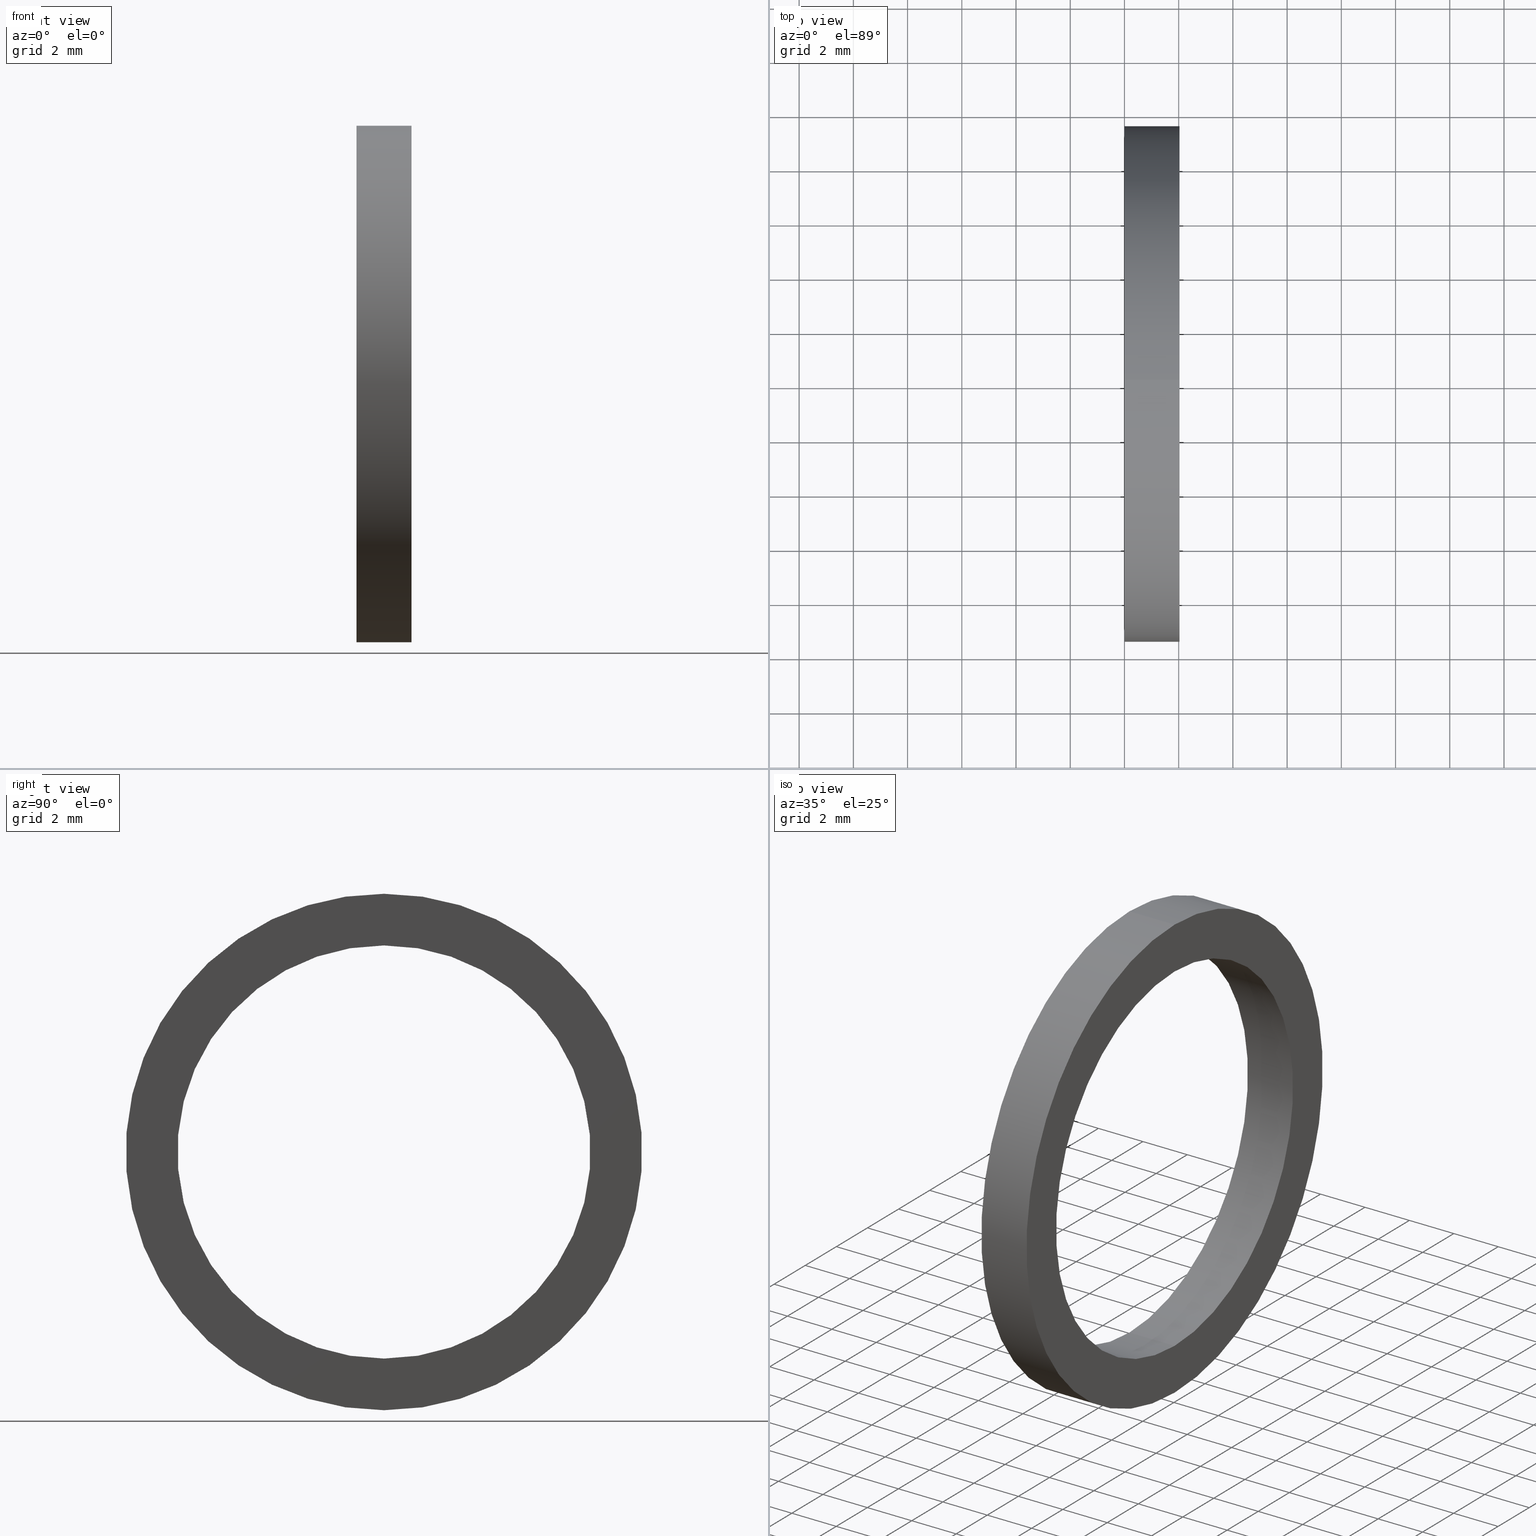
[diagram: canonical four-view strip — front | top / right | iso, engineering-drawing reading convention]
A machine part, canonical four-view strip (front | top / right | iso — engineering-drawing reading convention). The complete STEP part file that produces these views, byte-faithful:
ISO-10303-21;
HEADER;
FILE_DESCRIPTION (( 'STEP AP203' ),
    '1' );
FILE_NAME ('SR-09-VT.STEP',
    '2008-06-24T11:58:33',
    ( 'BSI05' ),
    ( 'BAYSTATE' ),
    'SwSTEP 2.0',
    'SolidWorks 2007',
    '' );
FILE_SCHEMA (( 'CONFIG_CONTROL_DESIGN' ));
ENDSEC;

DATA;
#1 = DIRECTION ( 'NONE',  ( 0.0000000000000000000, 0.0000000000000000000, 1.000000000000000000 ) ) ;
#2 = DIRECTION ( 'NONE',  ( 0.0000000000000000000, 0.0000000000000000000, -1.000000000000000000 ) ) ;
#3 =( NAMED_UNIT ( * ) PLANE_ANGLE_UNIT ( ) SI_UNIT ( $, .RADIAN. ) );
#4 = MANIFOLD_SOLID_BREP ( 'NONE', #10 ) ;
#5 = ADVANCED_FACE ( 'NONE', ( #32 ), #30, .F. ) ;
#6 = EDGE_LOOP ( 'NONE', ( #7, #45, #49, #38 ) ) ;
#7 = ORIENTED_EDGE ( 'NONE', *, *, #8, .F. ) ;
#8 = EDGE_CURVE ( 'NONE', #44, #43, #75, .T. ) ;
#9 = ORIENTED_EDGE ( 'NONE', *, *, #55, .T. ) ;
#10 = CLOSED_SHELL ( 'NONE', ( #5, #39, #33, #54, #18, #13 ) ) ;
#11 = ORIENTED_EDGE ( 'NONE', *, *, #8, .T. ) ;
#12 = ORIENTED_EDGE ( 'NONE', *, *, #52, .F. ) ;
#13 = ADVANCED_FACE ( 'NONE', ( #77 ), #80, .F. ) ;
#14 = EDGE_LOOP ( 'NONE', ( #15, #16, #17, #9 ) ) ;
#15 = ORIENTED_EDGE ( 'NONE', *, *, #46, .F. ) ;
#16 = ORIENTED_EDGE ( 'NONE', *, *, #23, .F. ) ;
#17 = ORIENTED_EDGE ( 'NONE', *, *, #41, .T. ) ;
#18 = ADVANCED_FACE ( 'NONE', ( #83, #82 ), #87, .T. ) ;
#19 = EDGE_LOOP ( 'NONE', ( #20, #11 ) ) ;
#20 = ORIENTED_EDGE ( 'NONE', *, *, #23, .T. ) ;
#21 = ORIENTED_EDGE ( 'NONE', *, *, #37, .F. ) ;
#22 = EDGE_LOOP ( 'NONE', ( #21, #12 ) ) ;
#23 = EDGE_CURVE ( 'NONE', #43, #44, #113, .T. ) ;
#24 = ORIENTED_EDGE ( 'NONE', *, *, #47, .F. ) ;
#25 = EDGE_LOOP ( 'NONE', ( #26, #27, #53, #56 ) ) ;
#26 = ORIENTED_EDGE ( 'NONE', *, *, #60, .F. ) ;
#27 = ORIENTED_EDGE ( 'NONE', *, *, #52, .T. ) ;
#28 = DIRECTION ( 'NONE',  ( -1.000000000000000000, 0.0000000000000000000, 0.0000000000000000000 ) ) ;
#29 = AXIS2_PLACEMENT_3D ( 'NONE', #31, #28, #1 ) ;
#30 = CYLINDRICAL_SURFACE ( 'NONE', #29, 0.2999999999999999900 ) ;
#31 = CARTESIAN_POINT ( 'NONE',  ( -1.721125226614714300, 0.0000000000000000000, 0.0000000000000000000 ) ) ;
#32 = FACE_OUTER_BOUND ( 'NONE', #6, .T. ) ;
#33 = ADVANCED_FACE ( 'NONE', ( #126, #89 ), #90, .T. ) ;
#34 = EDGE_LOOP ( 'NONE', ( #63, #64 ) ) ;
#35 = VERTEX_POINT ( 'NONE', #97 ) ;
#36 = ORIENTED_EDGE ( 'NONE', *, *, #37, .T. ) ;
#37 = EDGE_CURVE ( 'NONE', #58, #59, #95, .T. ) ;
#38 = ORIENTED_EDGE ( 'NONE', *, *, #41, .F. ) ;
#39 = ADVANCED_FACE ( 'NONE', ( #96 ), #101, .T. ) ;
#40 = EDGE_LOOP ( 'NONE', ( #36, #67, #61, #69 ) ) ;
#41 = EDGE_CURVE ( 'NONE', #43, #42, #128, .T. ) ;
#42 = VERTEX_POINT ( 'NONE', #129 ) ;
#43 = VERTEX_POINT ( 'NONE', #123 ) ;
#44 = VERTEX_POINT ( 'NONE', #122 ) ;
#45 = ORIENTED_EDGE ( 'NONE', *, *, #46, .T. ) ;
#46 = EDGE_CURVE ( 'NONE', #44, #48, #121, .T. ) ;
#47 = EDGE_CURVE ( 'NONE', #48, #42, #111, .T. ) ;
#48 = VERTEX_POINT ( 'NONE', #158 ) ;
#49 = ORIENTED_EDGE ( 'NONE', *, *, #47, .T. ) ;
#50 = UNCERTAINTY_MEASURE_WITH_UNIT (LENGTH_MEASURE( 1.000000000000000100E-005 ), #165, 'distance_accuracy_value', 'NONE');
#51 =( NAMED_UNIT ( * ) SI_UNIT ( $, .STERADIAN. ) SOLID_ANGLE_UNIT ( ) );
#52 = EDGE_CURVE ( 'NONE', #59, #58, #136, .T. ) ;
#53 = ORIENTED_EDGE ( 'NONE', *, *, #70, .T. ) ;
#54 = ADVANCED_FACE ( 'NONE', ( #130 ), #131, .T. ) ;
#55 = EDGE_CURVE ( 'NONE', #42, #48, #137, .T. ) ;
#56 = ORIENTED_EDGE ( 'NONE', *, *, #65, .F. ) ;
#57 = ORIENTED_EDGE ( 'NONE', *, *, #55, .F. ) ;
#58 = VERTEX_POINT ( 'NONE', #138 ) ;
#59 = VERTEX_POINT ( 'NONE', #160 ) ;
#60 = EDGE_CURVE ( 'NONE', #59, #35, #159, .T. ) ;
#61 = ORIENTED_EDGE ( 'NONE', *, *, #62, .F. ) ;
#62 = EDGE_CURVE ( 'NONE', #68, #35, #154, .T. ) ;
#63 = ORIENTED_EDGE ( 'NONE', *, *, #62, .T. ) ;
#64 = ORIENTED_EDGE ( 'NONE', *, *, #65, .T. ) ;
#65 = EDGE_CURVE ( 'NONE', #35, #68, #146, .T. ) ;
#66 = EDGE_LOOP ( 'NONE', ( #57, #24 ) ) ;
#67 = ORIENTED_EDGE ( 'NONE', *, *, #60, .T. ) ;
#68 = VERTEX_POINT ( 'NONE', #171 ) ;
#69 = ORIENTED_EDGE ( 'NONE', *, *, #70, .F. ) ;
#70 = EDGE_CURVE ( 'NONE', #58, #68, #173, .T. ) ;
#71 = DIRECTION ( 'NONE',  ( 0.0000000000000000000, 0.0000000000000000000, 1.000000000000000000 ) ) ;
#72 = DIRECTION ( 'NONE',  ( -1.000000000000000000, 0.0000000000000000000, 0.0000000000000000000 ) ) ;
#73 = CARTESIAN_POINT ( 'NONE',  ( 0.07999999999999996000, 0.0000000000000000000, 0.0000000000000000000 ) ) ;
#74 = AXIS2_PLACEMENT_3D ( 'NONE', #73, #72, #71 ) ;
#75 = CIRCLE ( 'NONE', #74, 0.2999999999999999900 ) ;
#76 = DIRECTION ( 'NONE',  ( 0.0000000000000000000, 0.0000000000000000000, 1.000000000000000000 ) ) ;
#77 = FACE_OUTER_BOUND ( 'NONE', #14, .T. ) ;
#78 = DIRECTION ( 'NONE',  ( -1.000000000000000000, 0.0000000000000000000, 0.0000000000000000000 ) ) ;
#79 = AXIS2_PLACEMENT_3D ( 'NONE', #81, #78, #76 ) ;
#80 = CYLINDRICAL_SURFACE ( 'NONE', #79, 0.2999999999999999900 ) ;
#81 = CARTESIAN_POINT ( 'NONE',  ( -1.721125226614714300, 0.0000000000000000000, 0.0000000000000000000 ) ) ;
#82 = FACE_OUTER_BOUND ( 'NONE', #22, .T. ) ;
#83 = FACE_BOUND ( 'NONE', #19, .T. ) ;
#84 = DIRECTION ( 'NONE',  ( 1.000000000000000000, 0.0000000000000000000, 0.0000000000000000000 ) ) ;
#85 = CARTESIAN_POINT ( 'NONE',  ( 0.08000000000000000200, -0.2999999999999999900, 0.0000000000000000000 ) ) ;
#86 = AXIS2_PLACEMENT_3D ( 'NONE', #85, #84, #2 ) ;
#87 = PLANE ( 'NONE',  #86 ) ;
#88 = CARTESIAN_POINT ( 'NONE',  ( 0.07999999999999996000, 0.0000000000000000000, 0.0000000000000000000 ) ) ;
#89 = FACE_BOUND ( 'NONE', #66, .T. ) ;
#90 = PLANE ( 'NONE',  #118 ) ;
#91 = DIRECTION ( 'NONE',  ( 0.0000000000000000000, 0.0000000000000000000, 1.000000000000000000 ) ) ;
#92 = DIRECTION ( 'NONE',  ( -1.000000000000000000, 0.0000000000000000000, 0.0000000000000000000 ) ) ;
#93 = AXIS2_PLACEMENT_3D ( 'NONE', #114, #92, #91 ) ;
#94 = AXIS2_PLACEMENT_3D ( 'NONE', #104, #103, #102 ) ;
#95 = CIRCLE ( 'NONE', #94, 0.3750000000000000600 ) ;
#96 = FACE_OUTER_BOUND ( 'NONE', #40, .T. ) ;
#97 = CARTESIAN_POINT ( 'NONE',  ( 0.0000000000000000000, 4.592425496802575500E-017, -0.3750000000000000600 ) ) ;
#98 = DIRECTION ( 'NONE',  ( 0.0000000000000000000, 0.0000000000000000000, 1.000000000000000000 ) ) ;
#99 = DIRECTION ( 'NONE',  ( -1.000000000000000000, 0.0000000000000000000, 0.0000000000000000000 ) ) ;
#100 = CARTESIAN_POINT ( 'NONE',  ( 1.132760877285699200E-017, -0.2999999999999999900, 0.0000000000000000000 ) ) ;
#101 = CYLINDRICAL_SURFACE ( 'NONE', #93, 0.3750000000000000600 ) ;
#102 = DIRECTION ( 'NONE',  ( 0.0000000000000000000, 0.0000000000000000000, 1.000000000000000000 ) ) ;
#103 = DIRECTION ( 'NONE',  ( -1.000000000000000000, 0.0000000000000000000, 0.0000000000000000000 ) ) ;
#104 = CARTESIAN_POINT ( 'NONE',  ( 0.07999999999999996000, 0.0000000000000000000, 0.0000000000000000000 ) ) ;
#105 = DIRECTION ( 'NONE',  ( -1.000000000000000000, 0.0000000000000000000, 0.0000000000000000000 ) ) ;
#106 = DIRECTION ( 'NONE',  ( 0.0000000000000000000, 0.0000000000000000000, 1.000000000000000000 ) ) ;
#107 = DATE_TIME_ROLE ( 'creation_date' ) ;
#108 = DIRECTION ( 'NONE',  ( 0.0000000000000000000, 0.0000000000000000000, 1.000000000000000000 ) ) ;
#109 = DIRECTION ( 'NONE',  ( -1.000000000000000000, 0.0000000000000000000, 0.0000000000000000000 ) ) ;
#110 = AXIS2_PLACEMENT_3D ( 'NONE', #115, #109, #108 ) ;
#111 = CIRCLE ( 'NONE', #110, 0.2999999999999999900 ) ;
#112 =( GEOMETRIC_REPRESENTATION_CONTEXT ( 3 ) GLOBAL_UNCERTAINTY_ASSIGNED_CONTEXT ( ( #50 ) ) GLOBAL_UNIT_ASSIGNED_CONTEXT ( ( #165, #3, #51 ) ) REPRESENTATION_CONTEXT ( 'NONE', 'WORKASPACE' ) );
#113 = CIRCLE ( 'NONE', #117, 0.2999999999999999900 ) ;
#114 = CARTESIAN_POINT ( 'NONE',  ( -1.721125226614714300, 0.0000000000000000000, 0.0000000000000000000 ) ) ;
#115 = CARTESIAN_POINT ( 'NONE',  ( 0.0000000000000000000, 0.0000000000000000000, 0.0000000000000000000 ) ) ;
#116 = VECTOR ( 'NONE', #119, 39.37007874015748100 ) ;
#117 = AXIS2_PLACEMENT_3D ( 'NONE', #88, #105, #106 ) ;
#118 = AXIS2_PLACEMENT_3D ( 'NONE', #100, #99, #98 ) ;
#119 = DIRECTION ( 'NONE',  ( -1.000000000000000000, 0.0000000000000000000, 0.0000000000000000000 ) ) ;
#120 = CARTESIAN_POINT ( 'NONE',  ( -1.721125226614714300, 3.673940397442058900E-017, -0.2999999999999999900 ) ) ;
#121 = LINE ( 'NONE', #120, #116 ) ;
#122 = CARTESIAN_POINT ( 'NONE',  ( 0.07999999999999996000, 3.673940397442058900E-017, -0.2999999999999999900 ) ) ;
#123 = CARTESIAN_POINT ( 'NONE',  ( 0.07999999999999996000, 0.0000000000000000000, 0.2999999999999999900 ) ) ;
#124 = DIRECTION ( 'NONE',  ( -1.000000000000000000, 0.0000000000000000000, 0.0000000000000000000 ) ) ;
#125 = VECTOR ( 'NONE', #124, 39.37007874015748100 ) ;
#126 = FACE_OUTER_BOUND ( 'NONE', #34, .T. ) ;
#127 = CARTESIAN_POINT ( 'NONE',  ( -1.721125226614714300, 0.0000000000000000000, 0.2999999999999999900 ) ) ;
#128 = LINE ( 'NONE', #127, #125 ) ;
#129 = CARTESIAN_POINT ( 'NONE',  ( 0.0000000000000000000, 0.0000000000000000000, 0.2999999999999999900 ) ) ;
#130 = FACE_OUTER_BOUND ( 'NONE', #25, .T. ) ;
#131 = CYLINDRICAL_SURFACE ( 'NONE', #140, 0.3750000000000000600 ) ;
#132 = DIRECTION ( 'NONE',  ( -1.000000000000000000, 0.0000000000000000000, 0.0000000000000000000 ) ) ;
#133 = CARTESIAN_POINT ( 'NONE',  ( -1.721125226614714300, 0.0000000000000000000, 0.0000000000000000000 ) ) ;
#134 = CARTESIAN_POINT ( 'NONE',  ( 0.07999999999999996000, 0.0000000000000000000, 0.0000000000000000000 ) ) ;
#135 = AXIS2_PLACEMENT_3D ( 'NONE', #134, #151, #150 ) ;
#136 = CIRCLE ( 'NONE', #135, 0.3750000000000000600 ) ;
#137 = CIRCLE ( 'NONE', #164, 0.2999999999999999900 ) ;
#138 = CARTESIAN_POINT ( 'NONE',  ( 0.07999999999999996000, 0.0000000000000000000, 0.3750000000000000600 ) ) ;
#139 = DIRECTION ( 'NONE',  ( 0.0000000000000000000, 0.0000000000000000000, 1.000000000000000000 ) ) ;
#140 = AXIS2_PLACEMENT_3D ( 'NONE', #133, #132, #139 ) ;
#141 = CC_DESIGN_DATE_AND_TIME_ASSIGNMENT ( #182, #107, ( #200 ) ) ;
#142 = DIRECTION ( 'NONE',  ( 0.0000000000000000000, 0.0000000000000000000, 1.000000000000000000 ) ) ;
#143 = DIRECTION ( 'NONE',  ( -1.000000000000000000, 0.0000000000000000000, 0.0000000000000000000 ) ) ;
#144 = CARTESIAN_POINT ( 'NONE',  ( 0.0000000000000000000, 0.0000000000000000000, 0.0000000000000000000 ) ) ;
#145 = AXIS2_PLACEMENT_3D ( 'NONE', #144, #143, #142 ) ;
#146 = CIRCLE ( 'NONE', #145, 0.3750000000000000600 ) ;
#147 = ADVANCED_BREP_SHAPE_REPRESENTATION ( 'SR-09-VT', ( #4, #205 ), #112 ) ;
#148 = DIRECTION ( 'NONE',  ( 0.0000000000000000000, 0.0000000000000000000, 1.000000000000000000 ) ) ;
#149 = DIRECTION ( 'NONE',  ( -1.000000000000000000, 0.0000000000000000000, 0.0000000000000000000 ) ) ;
#150 = DIRECTION ( 'NONE',  ( 0.0000000000000000000, 0.0000000000000000000, 1.000000000000000000 ) ) ;
#151 = DIRECTION ( 'NONE',  ( -1.000000000000000000, 0.0000000000000000000, 0.0000000000000000000 ) ) ;
#152 = CARTESIAN_POINT ( 'NONE',  ( 0.0000000000000000000, 0.0000000000000000000, 0.0000000000000000000 ) ) ;
#153 = AXIS2_PLACEMENT_3D ( 'NONE', #152, #149, #148 ) ;
#154 = CIRCLE ( 'NONE', #153, 0.3750000000000000600 ) ;
#155 = DIRECTION ( 'NONE',  ( -1.000000000000000000, 0.0000000000000000000, 0.0000000000000000000 ) ) ;
#156 = VECTOR ( 'NONE', #155, 39.37007874015748100 ) ;
#157 = CARTESIAN_POINT ( 'NONE',  ( -1.721125226614714300, 4.592425496802575500E-017, -0.3750000000000000600 ) ) ;
#158 = CARTESIAN_POINT ( 'NONE',  ( 0.0000000000000000000, 3.673940397442058900E-017, -0.2999999999999999900 ) ) ;
#159 = LINE ( 'NONE', #157, #156 ) ;
#160 = CARTESIAN_POINT ( 'NONE',  ( 0.07999999999999996000, 4.592425496802575500E-017, -0.3750000000000000600 ) ) ;
#161 = DIRECTION ( 'NONE',  ( 0.0000000000000000000, 0.0000000000000000000, 1.000000000000000000 ) ) ;
#162 = DIRECTION ( 'NONE',  ( -1.000000000000000000, 0.0000000000000000000, 0.0000000000000000000 ) ) ;
#163 = CARTESIAN_POINT ( 'NONE',  ( 0.0000000000000000000, 0.0000000000000000000, 0.0000000000000000000 ) ) ;
#164 = AXIS2_PLACEMENT_3D ( 'NONE', #163, #162, #161 ) ;
#165 =( CONVERSION_BASED_UNIT ( 'INCH', #166 ) LENGTH_UNIT ( ) NAMED_UNIT ( #167 ) );
#166 = LENGTH_MEASURE_WITH_UNIT ( LENGTH_MEASURE( 0.02539999999999999900 ), #168 );
#167 = DIMENSIONAL_EXPONENTS ( 1.000000000000000000, 0.0000000000000000000, 0.0000000000000000000, 0.0000000000000000000, 0.0000000000000000000, 0.0000000000000000000, 0.0000000000000000000 ) ;
#168 =( LENGTH_UNIT ( ) NAMED_UNIT ( * ) SI_UNIT ( $, .METRE. ) );
#169 = DIRECTION ( 'NONE',  ( -1.000000000000000000, 0.0000000000000000000, 0.0000000000000000000 ) ) ;
#170 = VECTOR ( 'NONE', #169, 39.37007874015748100 ) ;
#171 = CARTESIAN_POINT ( 'NONE',  ( 0.0000000000000000000, 0.0000000000000000000, 0.3750000000000000600 ) ) ;
#172 = CARTESIAN_POINT ( 'NONE',  ( -1.721125226614714300, 0.0000000000000000000, 0.3750000000000000600 ) ) ;
#173 = LINE ( 'NONE', #172, #170 ) ;
#174 = PERSON_AND_ORGANIZATION ( #203, #210 ) ;
#175 = PRODUCT_DEFINITION_FORMATION_WITH_SPECIFIED_SOURCE ( 'ANY', '', #178, .NOT_KNOWN. ) ;
#176 = DIRECTION ( 'NONE',  ( 1.000000000000000000, 0.0000000000000000000, 0.0000000000000000000 ) ) ;
#177 = DIRECTION ( 'NONE',  ( 0.0000000000000000000, 0.0000000000000000000, 1.000000000000000000 ) ) ;
#178 = PRODUCT ( 'SR-09-VT', 'SR-09-VT', '', ( #179 ) ) ;
#179 = MECHANICAL_CONTEXT ( 'NONE', #181, 'mechanical' ) ;
#180 = APPLICATION_PROTOCOL_DEFINITION ( 'international standard', 'config_control_design', 1994, #181 ) ;
#181 = APPLICATION_CONTEXT ( 'configuration controlled 3d designs of mechanical parts and assemblies' ) ;
#182 = DATE_AND_TIME ( #183, #184 ) ;
#183 = CALENDAR_DATE ( 2008, 24, 6 ) ;
#184 = LOCAL_TIME ( 17, 28, 33.00000000000000000, #185 ) ;
#185 = COORDINATED_UNIVERSAL_TIME_OFFSET ( 5, 30, .AHEAD. ) ;
#186 = CC_DESIGN_PERSON_AND_ORGANIZATION_ASSIGNMENT ( #188, #187, ( #200 ) ) ;
#187 = PERSON_AND_ORGANIZATION_ROLE ( 'creator' ) ;
#188 = PERSON_AND_ORGANIZATION ( #203, #210 ) ;
#189 = CC_DESIGN_APPROVAL ( #197, ( #200 ) ) ;
#190 = APPROVAL_DATE_TIME ( #191, #197 ) ;
#191 = DATE_AND_TIME ( #192, #193 ) ;
#192 = CALENDAR_DATE ( 2008, 24, 6 ) ;
#193 = LOCAL_TIME ( 17, 28, 33.00000000000000000, #194 ) ;
#194 = COORDINATED_UNIVERSAL_TIME_OFFSET ( 5, 30, .AHEAD. ) ;
#195 = APPROVAL_PERSON_ORGANIZATION ( #199, #197, #196 ) ;
#196 = APPROVAL_ROLE ( '' ) ;
#197 = APPROVAL ( #198, 'UNSPECIFIED' ) ;
#198 = APPROVAL_STATUS ( 'not_yet_approved' ) ;
#199 = PERSON_AND_ORGANIZATION ( #203, #210 ) ;
#200 = PRODUCT_DEFINITION ( 'UNKNOWN', '', #175, #201 ) ;
#201 = DESIGN_CONTEXT ( 'detailed design', #206, 'design' ) ;
#202 = APPLICATION_PROTOCOL_DEFINITION ( 'international standard', 'config_control_design', 1994, #206 ) ;
#203 = PERSON ( 'UNSPECIFIED', 'UNSPECIFIED', 'UNSPECIFIED', ('UNSPECIFIED'), ('UNSPECIFIED'), ('UNSPECIFIED') ) ;
#204 = CARTESIAN_POINT ( 'NONE',  ( 0.0000000000000000000, 0.0000000000000000000, 0.0000000000000000000 ) ) ;
#205 = AXIS2_PLACEMENT_3D ( 'NONE', #204, #177, #176 ) ;
#206 = APPLICATION_CONTEXT ( 'configuration controlled 3d designs of mechanical parts and assemblies' ) ;
#207 = CC_DESIGN_PERSON_AND_ORGANIZATION_ASSIGNMENT ( #209, #208, ( #178 ) ) ;
#208 = PERSON_AND_ORGANIZATION_ROLE ( 'design_owner' ) ;
#209 = PERSON_AND_ORGANIZATION ( #203, #210 ) ;
#210 = ORGANIZATION ( 'UNSPECIFIED', 'UNSPECIFIED', '' ) ;
#211 = CC_DESIGN_APPROVAL ( #216, ( #175 ) ) ;
#212 = LOCAL_TIME ( 17, 28, 33.00000000000000000, #213 ) ;
#213 = COORDINATED_UNIVERSAL_TIME_OFFSET ( 5, 30, .AHEAD. ) ;
#214 = DATE_AND_TIME ( #223, #212 ) ;
#215 = APPROVAL_PERSON_ORGANIZATION ( #174, #216, #221 ) ;
#216 = APPROVAL ( #220, 'UNSPECIFIED' ) ;
#217 = CC_DESIGN_PERSON_AND_ORGANIZATION_ASSIGNMENT ( #219, #218, ( #175 ) ) ;
#218 = PERSON_AND_ORGANIZATION_ROLE ( 'creator' ) ;
#219 = PERSON_AND_ORGANIZATION ( #203, #210 ) ;
#220 = APPROVAL_STATUS ( 'not_yet_approved' ) ;
#221 = APPROVAL_ROLE ( '' ) ;
#222 = APPROVAL_DATE_TIME ( #214, #216 ) ;
#223 = CALENDAR_DATE ( 2008, 24, 6 ) ;
#224 = SECURITY_CLASSIFICATION ( '', '', #234 ) ;
#225 = PERSON_AND_ORGANIZATION_ROLE ( 'design_supplier' ) ;
#226 = COORDINATED_UNIVERSAL_TIME_OFFSET ( 5, 30, .AHEAD. ) ;
#227 = CC_DESIGN_PERSON_AND_ORGANIZATION_ASSIGNMENT ( #236, #235, ( #224 ) ) ;
#228 = CC_DESIGN_PERSON_AND_ORGANIZATION_ASSIGNMENT ( #229, #225, ( #175 ) ) ;
#229 = PERSON_AND_ORGANIZATION ( #203, #210 ) ;
#230 = CC_DESIGN_APPROVAL ( #243, ( #224 ) ) ;
#231 = APPROVAL_DATE_TIME ( #232, #243 ) ;
#232 = DATE_AND_TIME ( #233, #246 ) ;
#233 = CALENDAR_DATE ( 2008, 24, 6 ) ;
#234 = SECURITY_CLASSIFICATION_LEVEL ( 'unclassified' ) ;
#235 = PERSON_AND_ORGANIZATION_ROLE ( 'classification_officer' ) ;
#236 = PERSON_AND_ORGANIZATION ( #203, #210 ) ;
#237 = PERSON_AND_ORGANIZATION ( #203, #210 ) ;
#238 = CC_DESIGN_DATE_AND_TIME_ASSIGNMENT ( #250, #239, ( #224 ) ) ;
#239 = DATE_TIME_ROLE ( 'classification_date' ) ;
#240 = SHAPE_DEFINITION_REPRESENTATION ( #245, #147 ) ;
#241 = CC_DESIGN_SECURITY_CLASSIFICATION ( #224, ( #175 ) ) ;
#242 = APPROVAL_ROLE ( '' ) ;
#243 = APPROVAL ( #244, 'UNSPECIFIED' ) ;
#244 = APPROVAL_STATUS ( 'not_yet_approved' ) ;
#245 = PRODUCT_DEFINITION_SHAPE ( 'NONE', 'NONE',  #200 ) ;
#246 = LOCAL_TIME ( 17, 28, 33.00000000000000000, #247 ) ;
#247 = COORDINATED_UNIVERSAL_TIME_OFFSET ( 5, 30, .AHEAD. ) ;
#248 = APPROVAL_PERSON_ORGANIZATION ( #237, #243, #242 ) ;
#249 = PRODUCT_RELATED_PRODUCT_CATEGORY ( 'detail', '', ( #178 ) ) ;
#250 = DATE_AND_TIME ( #251, #252 ) ;
#251 = CALENDAR_DATE ( 2008, 24, 6 ) ;
#252 = LOCAL_TIME ( 17, 28, 33.00000000000000000, #226 ) ;
ENDSEC;
END-ISO-10303-21;
